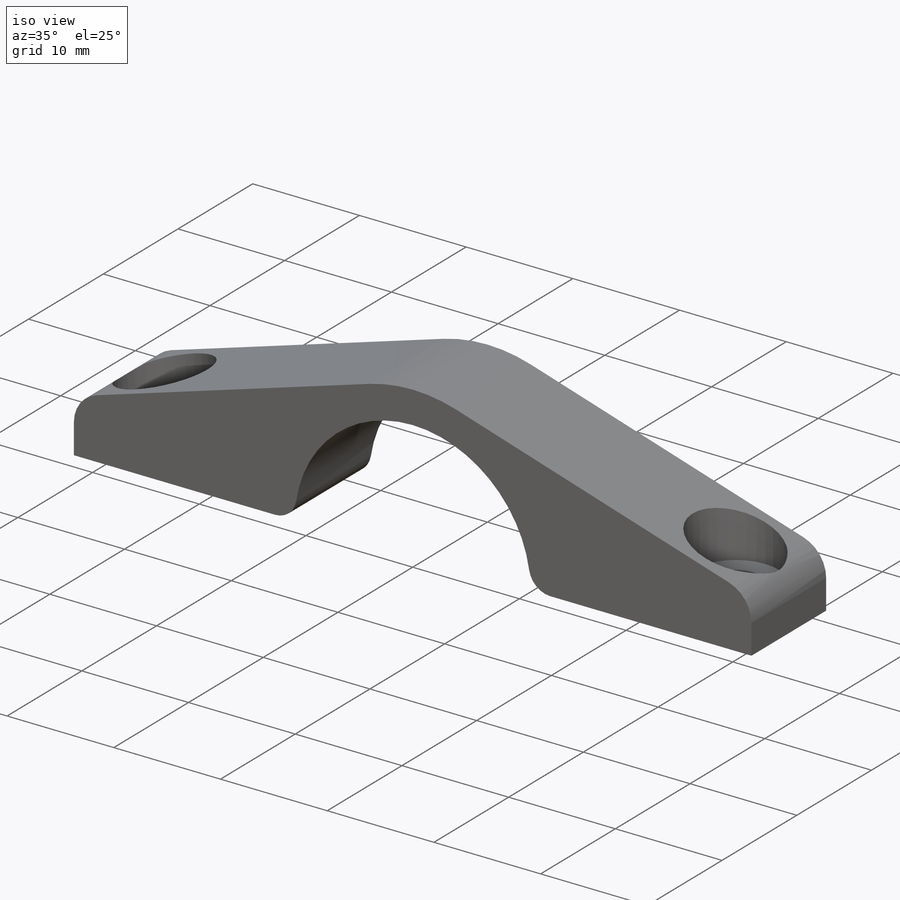
[diagram: iso view]
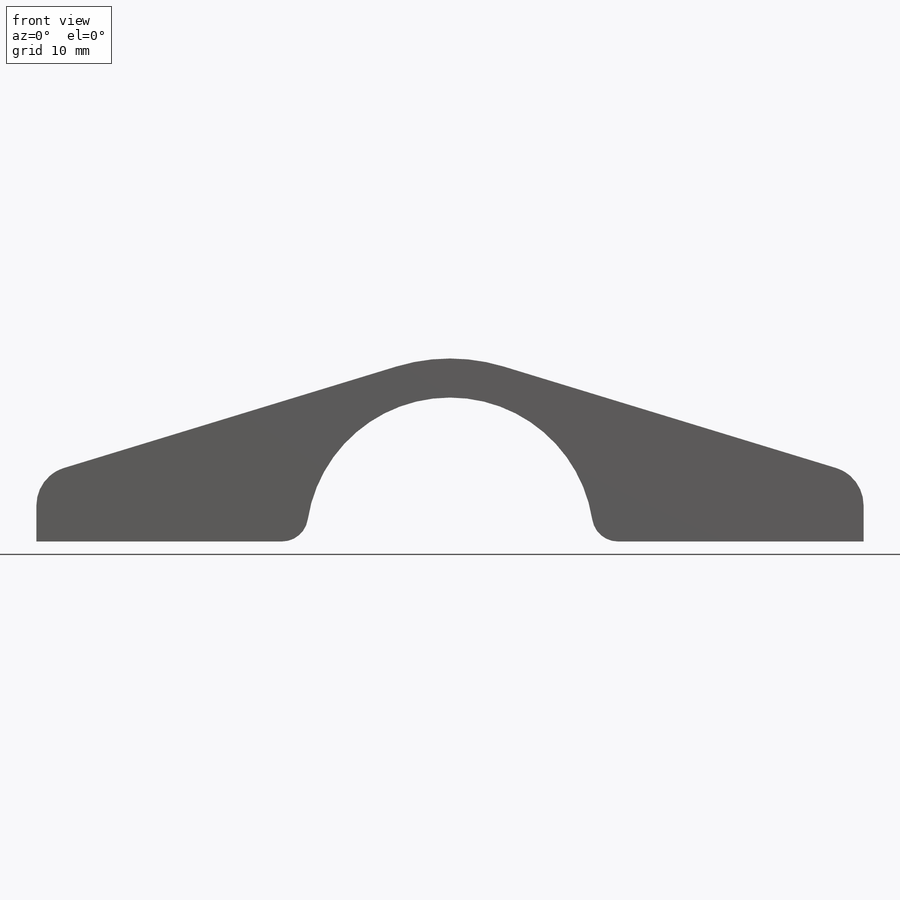
[diagram: front view]
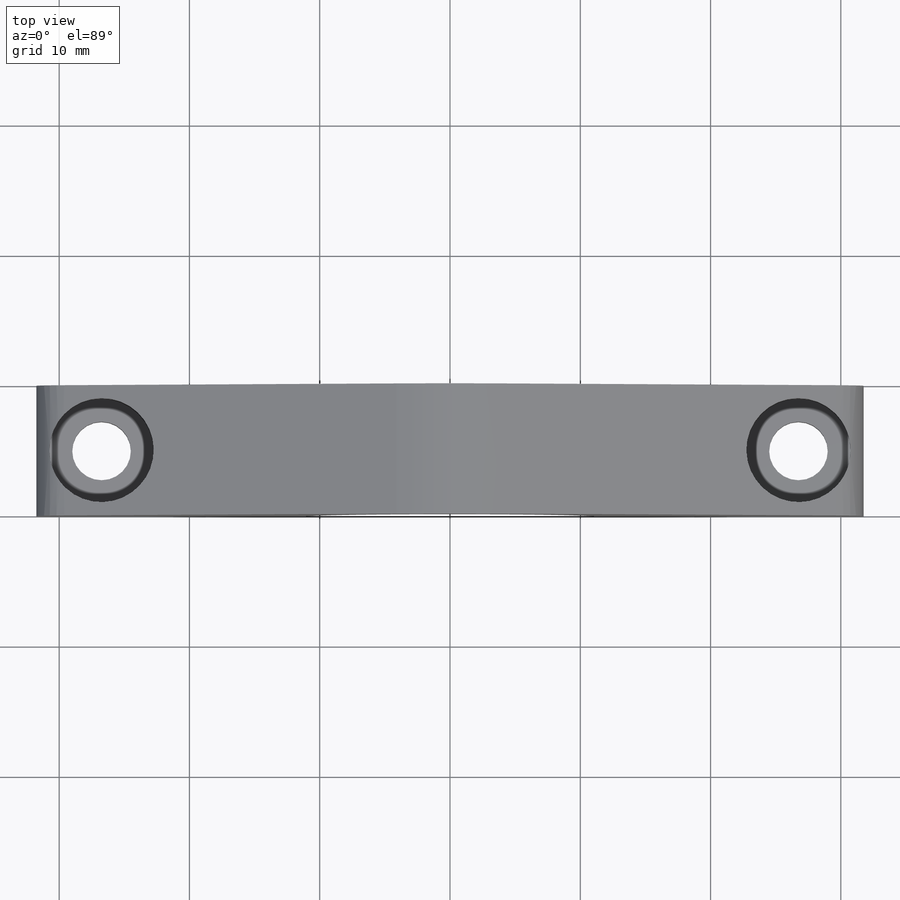
[diagram: top view]
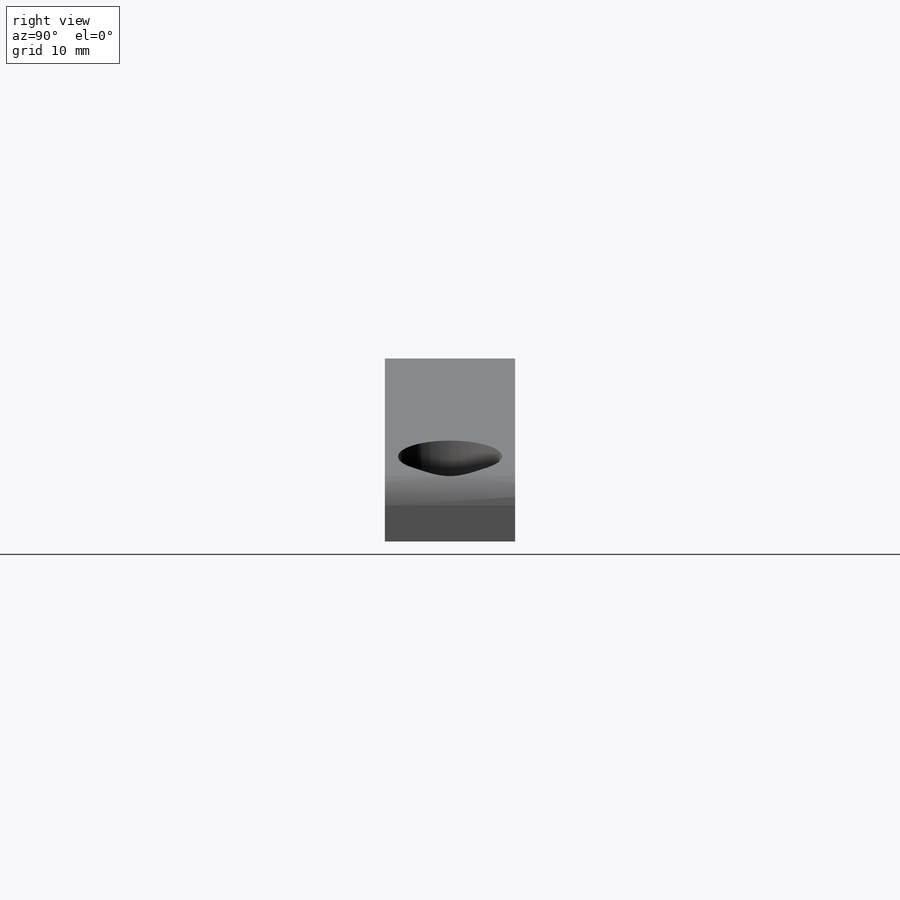
[diagram: right view]
SOLIDWORKS PART (.sldprt)
format: sldprt  version: not decoded by parser v0  size: 435,712 bytes
history: native  units: mm
features: sketch x11, plane x5, fillet x4, hole x4, material x1, extrude x1 (+8 scaffold rows collapsed)
feature tree (34):
  scaffold x8  (default folders/planes/origin — collapsed)
  material  "Сплав 2024"
  plane  "Спереди"
  plane  "Сверху"
  plane  "Справа"
  sketch  "Эскиз1"  dims[c1.D1=11.05mm c1.D2=3.0mm c1.D3=63.5mm c1.D4=5.0mm c1.D5=1.0mm c2.D4=5.0mm c2.D5=31.75mm c2.D6=4.0mm c3.D4=5.0mm c3.D7=5.0mm c3.D6=31.75mm]
  extrude  "Бобышка-Вытянуть1"  Depth=10mm
  fillet  "Скругление1"  Radius=3mm
  plane  "Плоскость1"  Offset=7mm
  sketch  "Эскиз2"  dims[D1=5.0mm]
  hole  "Цековка для винта с внутренним шестигранником M42"  [1 undecoded]
  sketch  "Эскиз6"
  sketch  "Эскиз5"  dims[hole-wizard template sketch: 42 standard entries collapsed; hole parameters kept: c12.Глубина сквозного отверстия=7.05mm c12.Диаметр цековки=8.0mm c12.Глубина цековки=4.0mm]
  hole  "Цековка для винта с внутренним шестигранником M43"  [1 undecoded]
  sketch  "Эскиз8"
  sketch  "Эскиз7"  dims[hole-wizard template sketch: 42 standard entries collapsed; hole parameters kept: c12.Глубина сквозного отверстия=7.0mm c12.Диаметр цековки=8.0mm c12.Глубина цековки=4.0mm]
  plane  "Плоскость2"  Offset=7mm
  sketch  "Эскиз9"  dims[D1=5.0mm]
  hole  "Цековка для винта с внутренним шестигранником M44"  [1 undecoded]
  sketch  "Эскиз11"
  sketch  "Эскиз10"  dims[hole-wizard template sketch: 42 standard entries collapsed; hole parameters kept: c12.Глубина сквозного отверстия=7.0mm c12.Диаметр цековки=8.0mm c12.Глубина цековки=4.0mm]
  hole  "Цековка для винта с внутренним шестигранником M45"  [1 undecoded]
  sketch  "Эскиз13"
  sketch  "Эскиз12"  dims[hole-wizard template sketch: 42 standard entries collapsed; hole parameters kept: c12.Глубина сквозного отверстия=7.05mm c12.Диаметр цековки=8.0mm c12.Глубина цековки=4.0mm]
  fillet  "Скругление4"  Radius=2mm
  fillet  "Скругление2"  Radius=3mm
  fillet  "Скругление3"  Radius=0.5mm
decode coverage: 12 of 20 modeling features carry decoded parameters
note: ~ marks probable driven/reference dimensions
note: 4 parameter values undecoded
summary: no parameter record found for 4 features
note: suppression state not decoded; provenance and decode notes live in map.json
